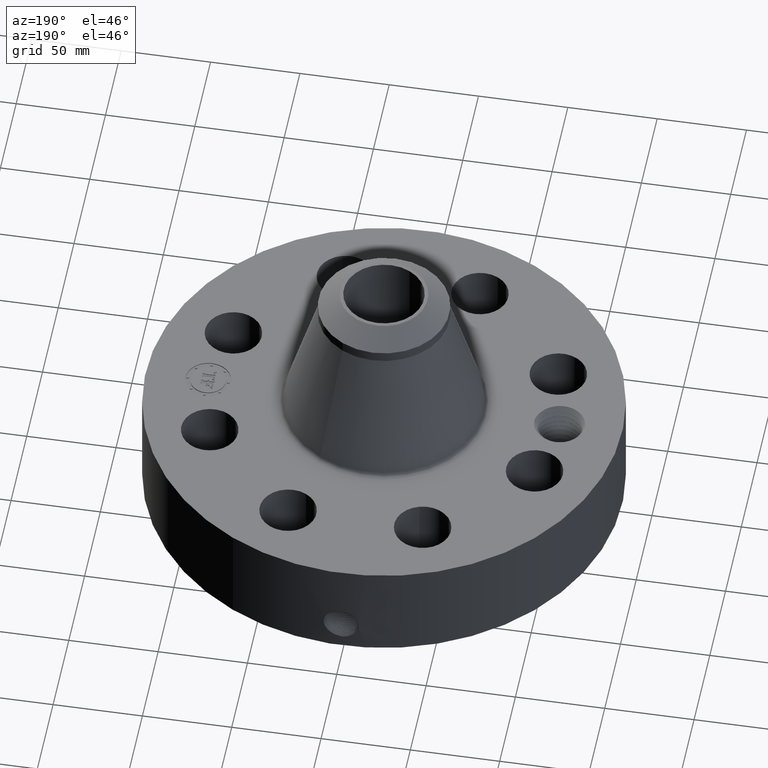
[diagram: clean part render]
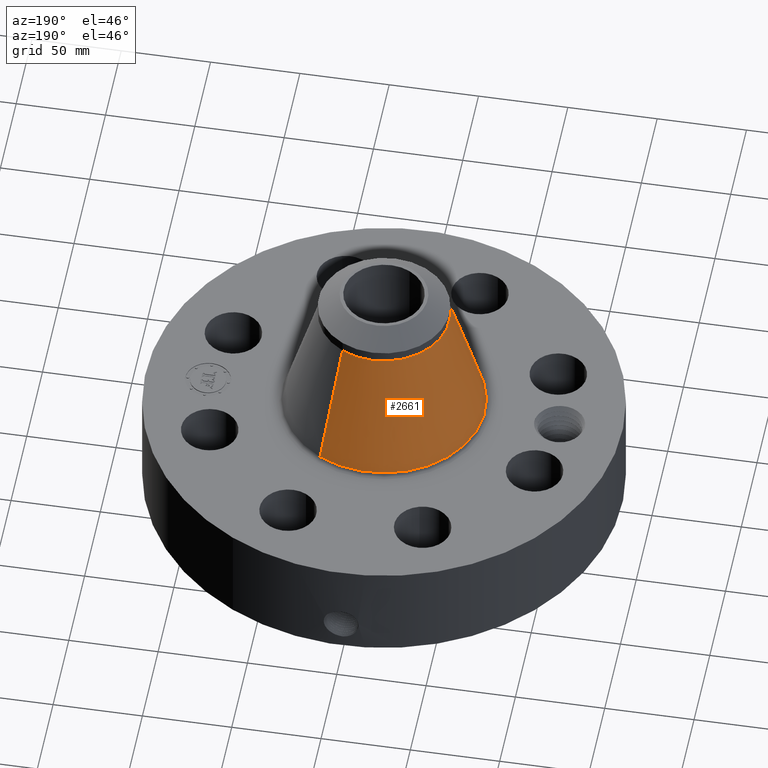
[diagram: same view with one face highlighted and labeled with its STEP entity id]
A machine part, auxiliary view. The second image highlights one B-rep face of the part: STEP entity #2661.
In plain terms, the highlighted conical surface has half-angle 16.307 deg.
Its self-contained STEP definition (entity closure, byte-faithful):
#1910=AXIS2_PLACEMENT_3D('Circle Axis2P3D',#1908,#1909,$) ;
#2622=AXIS2_PLACEMENT_3D('Cone Axis2P3D',#2619,#2620,#2621) ;
#2652=AXIS2_PLACEMENT_3D('Circle Axis2P3D',#2650,#2651,$) ;
#1886=CARTESIAN_POINT('Vertex',(1.06660238165,1.95240256357,2.58630578825)) ;
#1893=CARTESIAN_POINT('Vertex',(-1.06660238165,-1.95240256357,2.58630578825)) ;
#1908=CARTESIAN_POINT('Axis2P3D Location',(0.,0.,2.58630578825)) ;
#2619=CARTESIAN_POINT('Axis2P3D Location',(0.,0.,5.26871616062)) ;
#2624=CARTESIAN_POINT('Line Origine',(0.878487578624,1.60806072635,3.92751097444)) ;
#2628=CARTESIAN_POINT('Vertex',(0.690372775593,1.26371888913,5.26871616062)) ;
#2635=CARTESIAN_POINT('Vertex',(-0.690372775593,-1.26371888913,5.26871616062)) ;
#2638=CARTESIAN_POINT('Line Origine',(-0.878487578624,-1.60806072635,3.92751097444)) ;
#2650=CARTESIAN_POINT('Axis2P3D Location',(0.,0.,5.26871616062)) ;
#1909=DIRECTION('Axis2P3D Direction',(0.,0.,-0.0393700787402)) ;
#2620=DIRECTION('Axis2P3D Direction',(0.,0.,-0.0393700787402)) ;
#2621=DIRECTION('Axis2P3D XDirection',(-0.0188750212049,-0.0345504945626,0.)) ;
#2625=DIRECTION('Vector Direction',(0.00529982467806,0.00970126400041,-0.0377862466406)) ;
#2639=DIRECTION('Vector Direction',(-0.00529982467806,-0.00970126400041,-0.0377862466406)) ;
#2651=DIRECTION('Axis2P3D Direction',(0.,0.,-0.0393700787402)) ;
#2626=VECTOR('Line Direction',#2625,0.0393700787402) ;
#2640=VECTOR('Line Direction',#2639,0.0393700787402) ;
#2656=ORIENTED_EDGE('',*,*,#1912,.F.) ;
#2657=ORIENTED_EDGE('',*,*,#2642,.T.) ;
#2658=ORIENTED_EDGE('',*,*,#2654,.T.) ;
#2659=ORIENTED_EDGE('',*,*,#2630,.F.) ;
#2661=ADVANCED_FACE('PartBody',(#2660),#2623,.T.) ;
#1911=CIRCLE('generated circle',#1910,2.22475086488) ;
#2653=CIRCLE('generated circle',#2652,1.44000000001) ;
#2623=CONICAL_SURFACE('Cone',#2622,1.44000000001,0.284612017236) ;
#1912=EDGE_CURVE('',#1894,#1887,#1911,.T.) ;
#2630=EDGE_CURVE('',#1887,#2629,#2627,.F.) ;
#2642=EDGE_CURVE('',#1894,#2636,#2641,.F.) ;
#2654=EDGE_CURVE('',#2636,#2629,#2653,.T.) ;
#2655=EDGE_LOOP('',(#2656,#2657,#2658,#2659)) ;
#2660=FACE_OUTER_BOUND('',#2655,.T.) ;
#2627=LINE('Line',#2624,#2626) ;
#2641=LINE('Line',#2638,#2640) ;
#1887=VERTEX_POINT('',#1886) ;
#1894=VERTEX_POINT('',#1893) ;
#2629=VERTEX_POINT('',#2628) ;
#2636=VERTEX_POINT('',#2635) ;